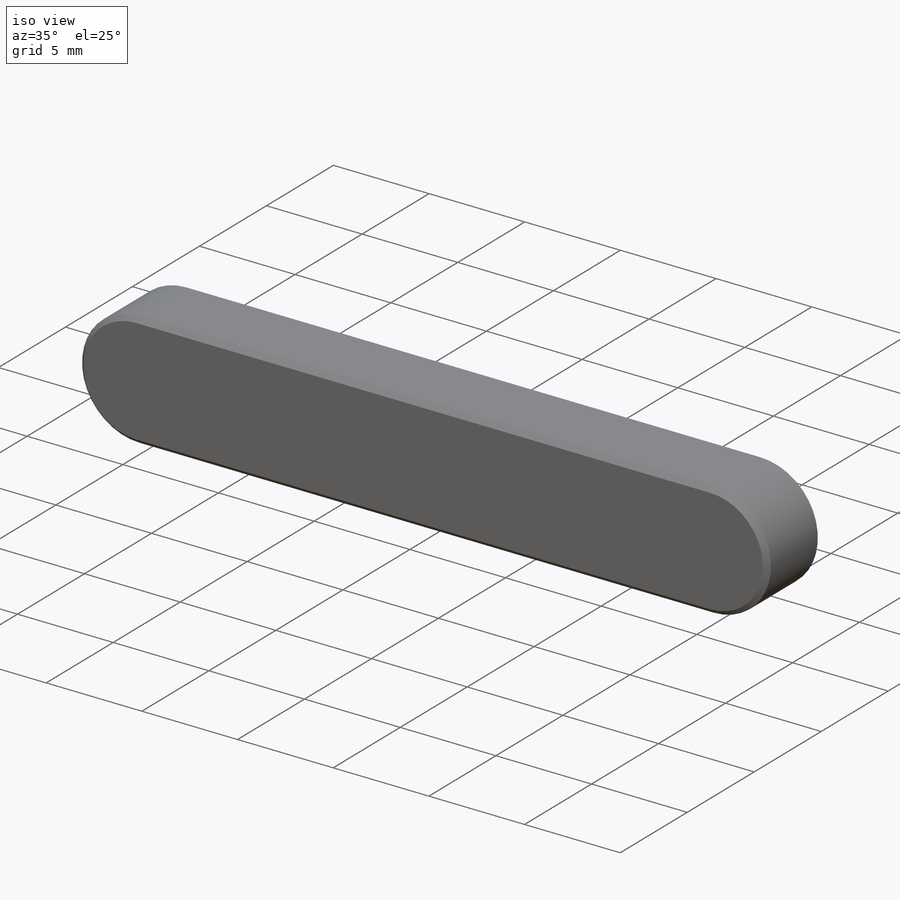
[diagram: iso view]
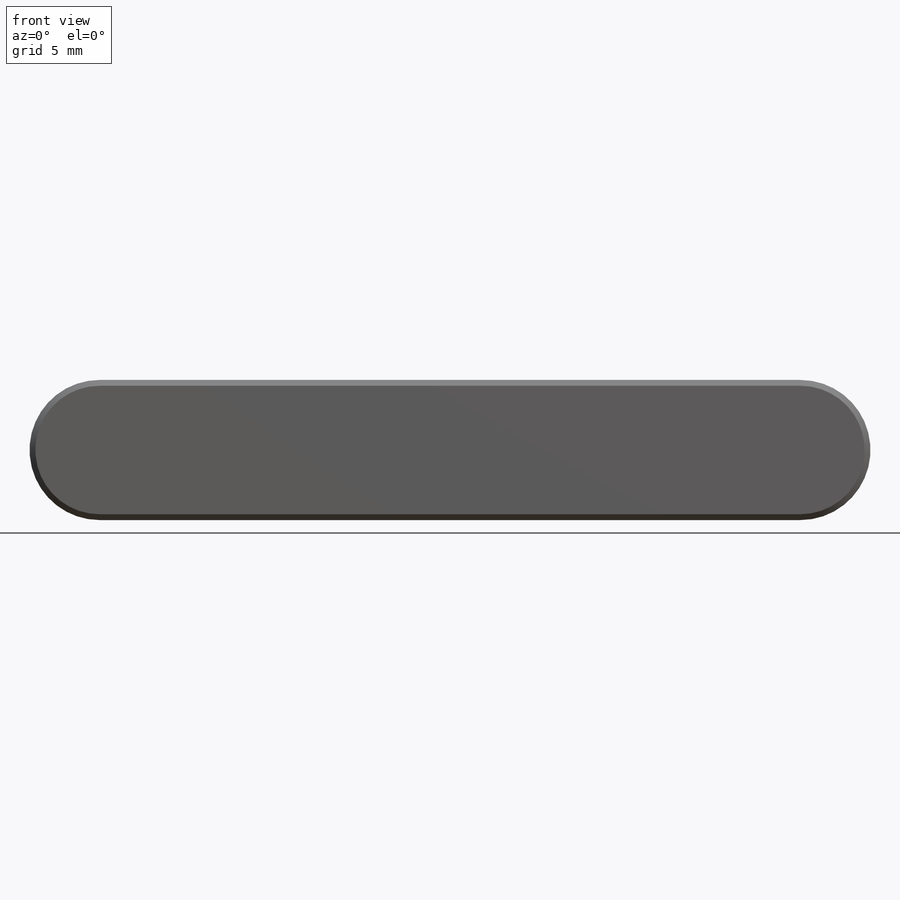
[diagram: front view]
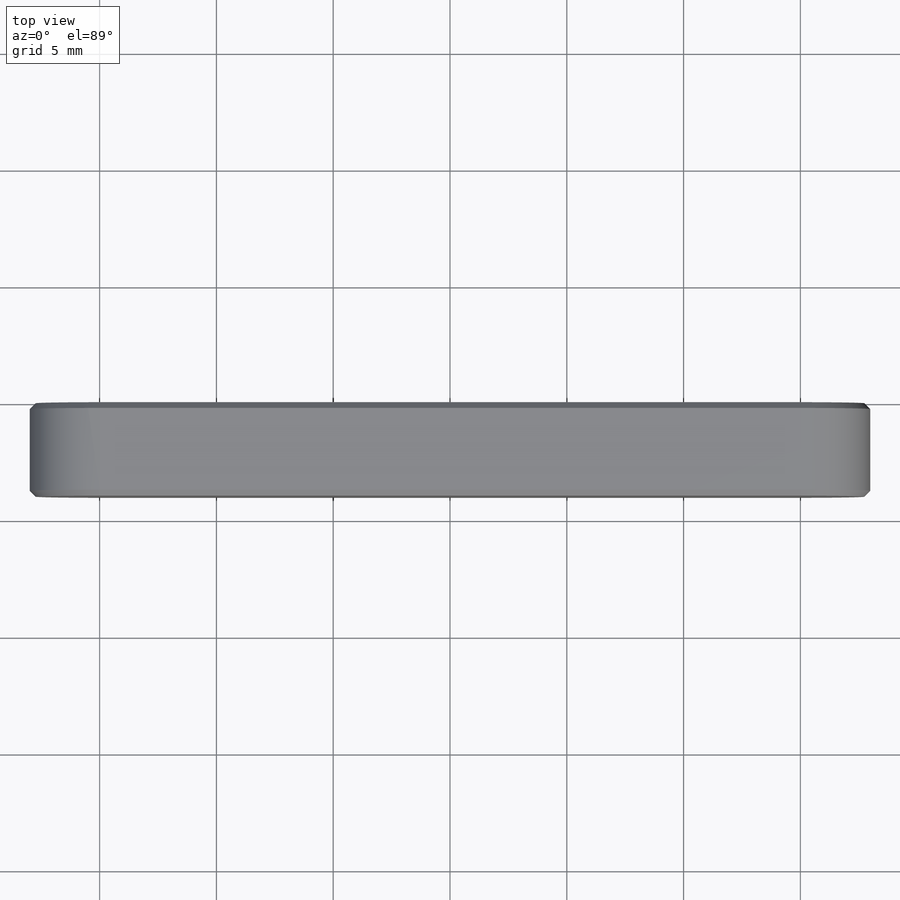
[diagram: top view]
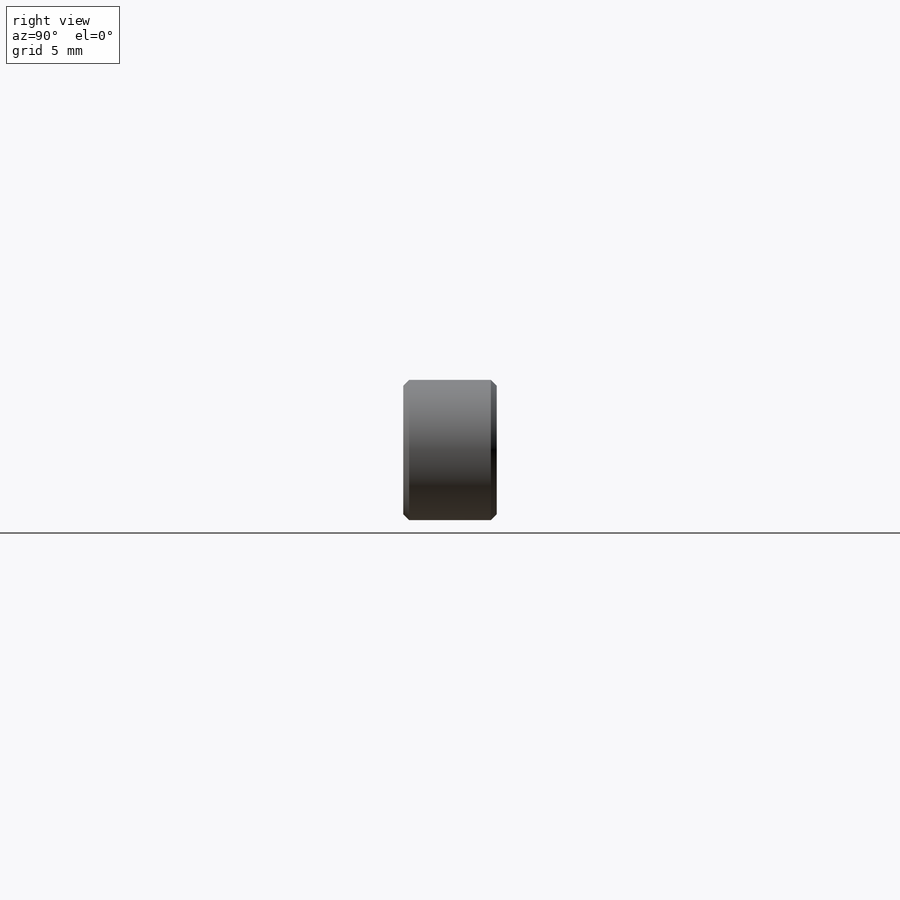
[diagram: right view]
SOLIDWORKS PART (.sldprt)
format: sldprt  version: not decoded by parser v0  size: 154,112 bytes
history: native  units: mm
features: sketch x3, extrude x3, material x1, chamfer x1 (+15 scaffold rows collapsed; 1 parser-record rows omitted)
feature tree (24):
  parser-record x1  (decoder bookkeeping rows leaked as tree rows — omitted from the tree; the rows remain in map.json)
  scaffold x15  (default folders/planes/origin — collapsed)
  material  "Material <not specified>"
  sketch  "Sketch1"  dims[b=6.0mm l=36.0mm]
  extrude  "Extrude1"  Depth=4mm h=4mm
  sketch  "Sketch2"
  extrude  "Extrude2"  Depth=4mm
  sketch  "Sketch3"
  extrude  "Extrude3"  Depth=4mm
  chamfer  "Chamfer1"  Distance=0.25mm Angle=45deg s=0.25mm ConfigurationName=0deg CopiedFlag=1 PartNumberID=0deg
decode coverage: 5 of 7 modeling features carry decoded parameters
note: suppression state not decoded; provenance and decode notes live in map.json
